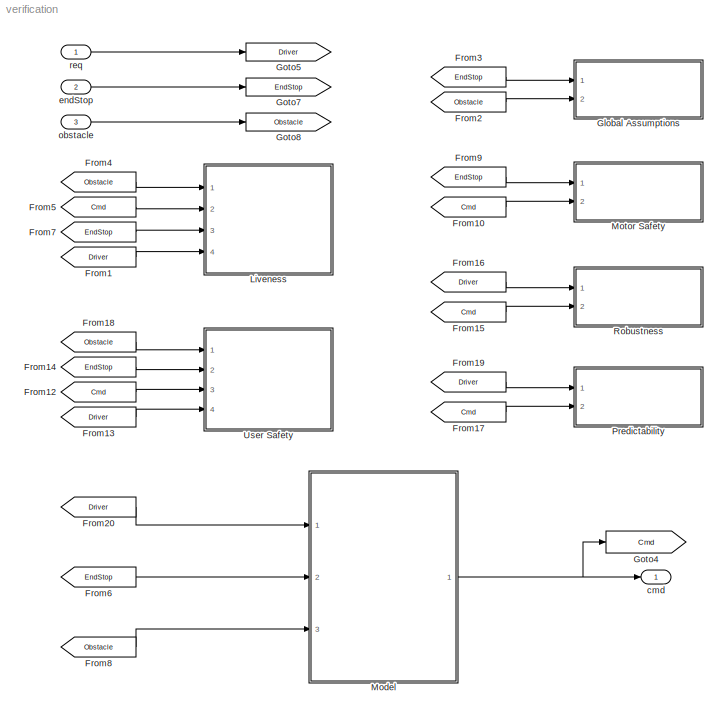
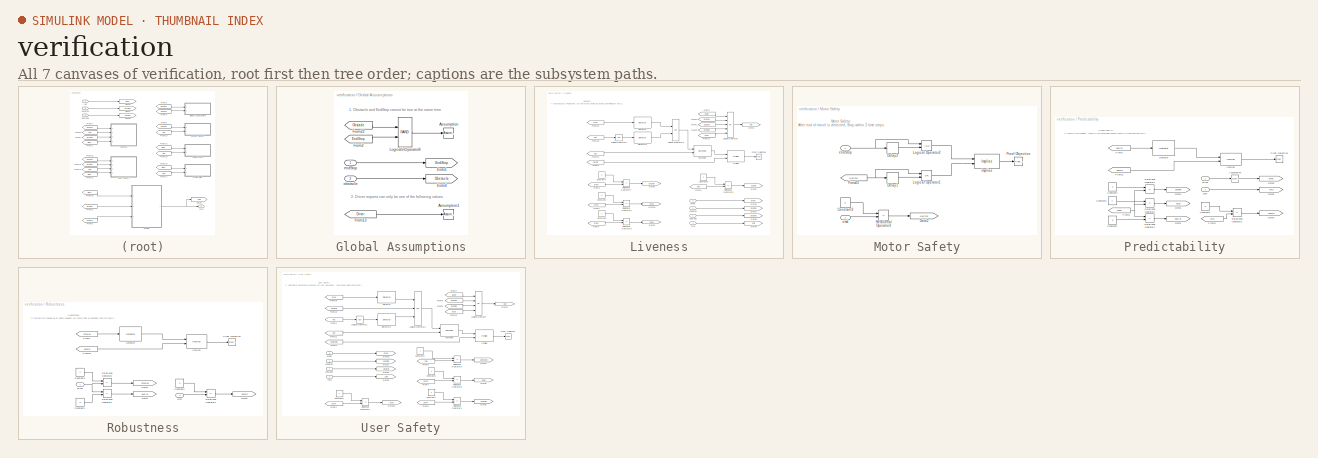
[diagram: thumbnail index - all 7 canvases of the model, root first then tree order]
MODEL verification
KIND model
BLOCK [From] From1
  GotoTag = Driver
  SID = 62
BLOCK [From] From10
  GotoTag = Cmd
  SID = 70
BLOCK [From] From12
  GotoTag = Cmd
  SID = 72
BLOCK [From] From13
  GotoTag = Driver
  SID = 73
BLOCK [From] From14
  GotoTag = EndStop
  SID = 74
BLOCK [From] From15
  GotoTag = Cmd
  SID = 78
BLOCK [From] From16
  GotoTag = Driver
  SID = 79
BLOCK [From] From17
  GotoTag = Cmd
  SID = 84
BLOCK [From] From18
  GotoTag = Obstacle
  SID = 81
BLOCK [From] From19
  GotoTag = Driver
  SID = 85
BLOCK [From] From2
  GotoTag = Obstacle
  SID = 63
BLOCK [From] From20
  GotoTag = Driver
  SID = 23
BLOCK [From] From3
  GotoTag = EndStop
  SID = 65
BLOCK [From] From4
  GotoTag = Obstacle
  SID = 66
BLOCK [From] From5
  GotoTag = Cmd
  SID = 67
BLOCK [From] From6
  GotoTag = EndStop
  SID = 25
BLOCK [From] From7
  GotoTag = EndStop
  SID = 68
BLOCK [From] From8
  GotoTag = Obstacle
  SID = 26
BLOCK [From] From9
  GotoTag = EndStop
  SID = 69
BLOCK [SubSystem] Global Assumptions
  CopyFcn = sldvsubsys('copy');
  DisableCoverage = on
  LoadFcn = sldvsubsys('check')
  OpenFcn = open_system(gcb,'force');
  Ports = [2]
  PreSaveFcn = set_param(gcb,'SimViewingDevice','on');\nsldvsubsys('check');
  RequestExecContextInheritance = off
  SID = 27
  SimViewingDevice = on
  Tag = VerificationSubsystem
  TreatAsAtomicUnit = on
BLOCK [Reference] Global Assumptions/Assumption  REF=sldvlib/Objectives and Constraints/Assumption
  AttributesFormatString = %<intervals>
  Ports = [1]
  SID = 27:224
  SourceBlock = sldvlib/Objectives and Constraints/Assumption
  SourceType = Design Verifier Assumption
  customAVTBlockType = Assumption
  dispValues = on
  enabled = on
  initial = off
  intervals = true
  outEnabled = off
BLOCK [Reference] Global Assumptions/Assumption1  REF=sldvlib/Objectives and Constraints/Assumption
  AttributesFormatString = %<intervals>
  Ports = [1]
  SID = 27:378
  SourceBlock = sldvlib/Objectives and Constraints/Assumption
  SourceType = Design Verifier Assumption
  customAVTBlockType = Assumption
  dispValues = on
  enabled = on
  initial = off
  intervals = {0,1,2,3,4}
  outEnabled = off
BLOCK [From] Global Assumptions/From13
  GotoTag = Driver
  SID = 27:379
BLOCK [From] Global Assumptions/From2
  GotoTag = EndStop
  SID = 27:372
  TagVisibility = global
BLOCK [From] Global Assumptions/From22
  GotoTag = Obstacle
  SID = 27:219
  TagVisibility = global
BLOCK [Goto] Global Assumptions/Goto1
  GotoTag = EndStop
  SID = 27:377
  TagVisibility = global
BLOCK [Goto] Global Assumptions/Goto4
  GotoTag = Obstacle
  SID = 27:376
  TagVisibility = global
BLOCK [Logic] Global Assumptions/Logical\nOperator8
  AllPortsSameDT = off
  Operator = NAND
  OutDataTypeStr = boolean
  Ports = [2, 1]
  SID = 27:220
BLOCK [Inport] Global Assumptions/endStop
  IconDisplay = Port number
  SID = 27:373
BLOCK [Inport] Global Assumptions/obstacle
  IconDisplay = Port number
  Port = 2
  SID = 27:374
BLOCK [Goto] Goto4
  GotoTag = Cmd
  SID = 28
BLOCK [Goto] Goto5
  GotoTag = Driver
  SID = 29
BLOCK [Goto] Goto7
  GotoTag = EndStop
  SID = 31
BLOCK [Goto] Goto8
  GotoTag = Obstacle
  SID = 32
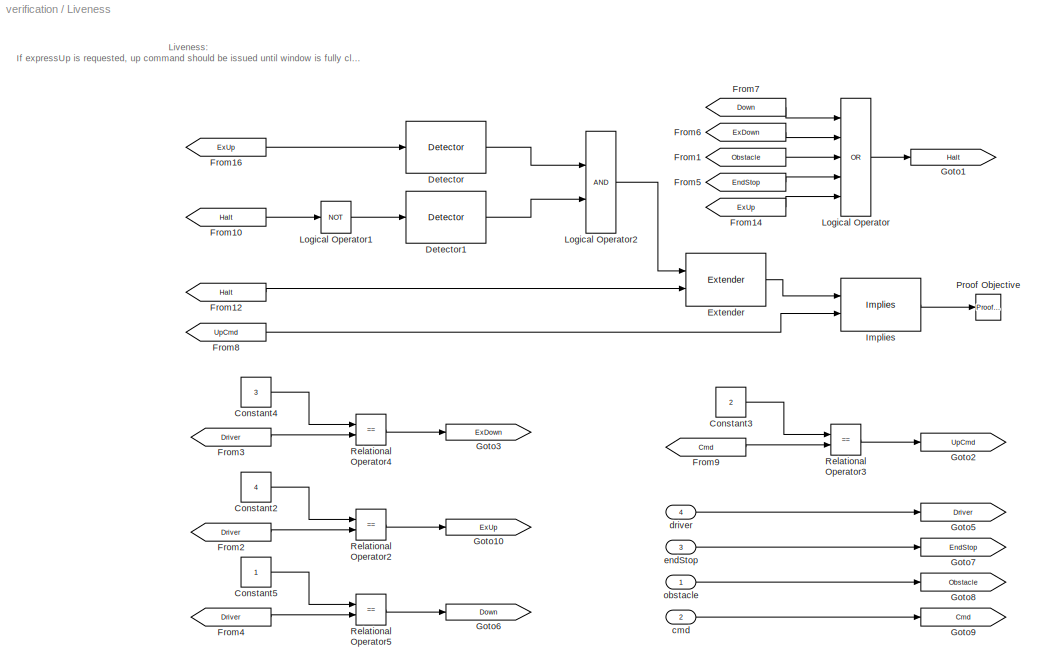
BLOCK [SubSystem] Liveness
  CopyFcn = sldvsubsys('copy');
  DisableCoverage = on
  LoadFcn = sldvsubsys('check')
  OpenFcn = open_system(gcb,'force');
  Ports = [4]
  PreSaveFcn = set_param(gcb,'SimViewingDevice','on');\nsldvsubsys('check');
  RequestExecContextInheritance = off
  SID = 43
  SimViewingDevice = on
  Tag = VerificationSubsystem
  TreatAsAtomicUnit = on
BLOCK [Constant] Liveness/Constant2
  SID = 43:3
  SampleTime = Inf
  Value = 4
BLOCK [Constant] Liveness/Constant3
  SID = 43:50
  SampleTime = Inf
  Value = 2
BLOCK [Constant] Liveness/Constant4
  SID = 43:87
  SampleTime = Inf
  Value = 3
BLOCK [Constant] Liveness/Constant5
  SID = 43:91
  SampleTime = Inf
BLOCK [Reference] Liveness/Detector  REF=sldvlib/Temporal Operators/Detector
  Ports = [1, 1]
  SID = 43:62
  SourceBlock = sldvlib/Temporal Operators/Detector
  SourceType = Detector
  delay = 0
  in_hold = 3
  out_hold = 2
  reset = off
  typ = Delayed Fixed Duration
BLOCK [Reference] Liveness/Detector1  REF=sldvlib/Temporal Operators/Detector
  Ports = [1, 1]
  SID = 43:75
  SourceBlock = sldvlib/Temporal Operators/Detector
  SourceType = Detector
  delay = 0
  in_hold = 4
  out_hold = 1
  reset = off
  typ = Delayed Fixed Duration
BLOCK [Reference] Liveness/Extender  REF=sldvlib/Temporal Operators/Extender
  Ports = [2, 1]
  SID = 43:39
  SourceBlock = sldvlib/Temporal Operators/Extender
  SourceType = Extender
  ext_type = Infinite
  out_hold = 3
  reset = on
BLOCK [From] Liveness/From1
  GotoTag = Obstacle
  SID = 43:95
BLOCK [From] Liveness/From10
  GotoTag = Halt
  SID = 43:107
BLOCK [From] Liveness/From12
  GotoTag = Halt
  SID = 43:109
BLOCK [From] Liveness/From14
  GotoTag = ExUp
  SID = 43:115
BLOCK [From] Liveness/From16
  GotoTag = ExUp
  SID = 43:5
BLOCK [From] Liveness/From2
  GotoTag = Driver
  SID = 43:86
BLOCK [From] Liveness/From3
  GotoTag = Driver
  SID = 43:88
BLOCK [From] Liveness/From4
  GotoTag = Driver
  SID = 43:92
BLOCK [From] Liveness/From5
  GotoTag = EndStop
  SID = 43:96
BLOCK [From] Liveness/From6
  GotoTag = ExDown
  SID = 43:97
BLOCK [From] Liveness/From7
  GotoTag = Down
  SID = 43:98
BLOCK [From] Liveness/From8
  GotoTag = UpCmd
  SID = 43:111
BLOCK [From] Liveness/From9
  GotoTag = Cmd
  SID = 43:105
BLOCK [Goto] Liveness/Goto1
  GotoTag = Halt
  SID = 43:77
BLOCK [Goto] Liveness/Goto10
  GotoTag = ExUp
  SID = 43:8
BLOCK [Goto] Liveness/Goto2
  GotoTag = UpCmd
  SID = 43:52
BLOCK [Goto] Liveness/Goto3
  GotoTag = ExDown
  SID = 43:89
BLOCK [Goto] Liveness/Goto5
  GotoTag = Driver
  SID = 43:83
BLOCK [Goto] Liveness/Goto6
  GotoTag = Down
  SID = 43:93
BLOCK [Goto] Liveness/Goto7
  GotoTag = EndStop
  SID = 43:84
BLOCK [Goto] Liveness/Goto8
  GotoTag = Obstacle
  SID = 43:85
BLOCK [Goto] Liveness/Goto9
  GotoTag = Cmd
  SID = 43:103
BLOCK [Reference] Liveness/Implies  REF=sldvlib/Verification Utilities/Implies
  Ports = [2, 1]
  SID = 43:9
  SourceBlock = sldvlib/Verification Utilities/Implies
  SourceType = Design Verifier Implies
BLOCK [Logic] Liveness/Logical Operator
  AllPortsSameDT = off
  Inputs = 5
  Operator = OR
  OutDataTypeStr = boolean
  Ports = [5, 1]
  SID = 43:74
BLOCK [Logic] Liveness/Logical Operator1
  AllPortsSameDT = off
  Operator = NOT
  OutDataTypeStr = boolean
  Ports = [1, 1]
  SID = 43:76
BLOCK [Logic] Liveness/Logical Operator2
  AllPortsSameDT = off
  OutDataTypeStr = boolean
  Ports = [2, 1]
  SID = 43:106
BLOCK [Reference] Liveness/Proof Objective  REF=sldvlib/Objectives and Constraints/Proof Objective
  AttributesFormatString = %<intervals>
  Ports = [1]
  SID = 43:10
  SourceBlock = sldvlib/Objectives and Constraints/Proof Objective
  SourceType = Design Verifier Proof Objective
  customAVTBlockType = Proof Objective
  dispValues = on
  enableStopSim = off
  enabled = on
  intervals = true
  outEnabled = off
BLOCK [RelationalOperator] Liveness/Relational Operator2
  InputSameDT = off
  Operator = ==
  OutDataTypeStr = boolean
  Ports = [2, 1]
  SID = 43:11
BLOCK [RelationalOperator] Liveness/Relational Operator3
  InputSameDT = off
  Operator = ==
  OutDataTypeStr = boolean
  Ports = [2, 1]
  SID = 43:53
BLOCK [RelationalOperator] Liveness/Relational Operator4
  InputSameDT = off
  Operator = ==
  OutDataTypeStr = boolean
  Ports = [2, 1]
  SID = 43:90
BLOCK [RelationalOperator] Liveness/Relational Operator5
  InputSameDT = off
  Operator = ==
  OutDataTypeStr = boolean
  Ports = [2, 1]
  SID = 43:94
BLOCK [Inport] Liveness/cmd
  IconDisplay = Port number
  Port = 2
  SID = 43:49
BLOCK [Inport] Liveness/driver
  IconDisplay = Port number
  OutDataTypeStr = double
  Port = 4
  SID = 43:80
BLOCK [Inport] Liveness/endStop
  IconDisplay = Port number
  OutDataTypeStr = boolean
  Port = 3
  SID = 43:81
BLOCK [Inport] Liveness/obstacle
  IconDisplay = Port number
  OutDataTypeStr = boolean
  SID = 43:82
BLOCK [ModelReference] Model
  CopyOfModelName = power_window_controller
  DefaultDataLogging = on
  ModelNameDialog = power_window_controller
  ModelReferenceVersion = 1.45
  Ports = [3, 1]
  SID = 33
BLOCK [SubSystem] Motor Safety
  CopyFcn = sldvsubsys('copy');
  DisableCoverage = on
  LoadFcn = sldvsubsys('check')
  OpenFcn = open_system(gcb,'force');
  Ports = [2]
  PreSaveFcn = set_param(gcb,'SimViewingDevice','on');\nsldvsubsys('check');
  RequestExecContextInheritance = off
  SID = 36
  SimViewingDevice = on
  Tag = VerificationSubsystem
  TreatAsAtomicUnit = on
BLOCK [Constant] Motor Safety/Constant3
  SID = 36:26
  SampleTime = Inf
  Value = 0
BLOCK [Delay] Motor Safety/Delay1
  DelayLength = 1
  InitialCondition = 0
  InputPortMap = u0
  Ports = [1, 1]
  SID = 36:20
BLOCK [Delay] Motor Safety/Delay2
  DelayLength = 1
  InitialCondition = 0
  InputPortMap = u0
  Ports = [1, 1]
  SID = 36:35
BLOCK [From] Motor Safety/From22
  GotoTag = NoCmd
  SID = 36:7
BLOCK [Goto] Motor Safety/Goto2
  GotoTag = NoCmd
  SID = 36:27
BLOCK [Reference] Motor Safety/Implies  REF=sldvlib/Verification Utilities/Implies
  Ports = [2, 1]
  SID = 36:9
  SourceBlock = sldvlib/Verification Utilities/Implies
  SourceType = Design Verifier Implies
BLOCK [Logic] Motor Safety/Logical Operator1
  AllPortsSameDT = off
  Operator = OR
  OutDataTypeStr = boolean
  Ports = [2, 1]
  SID = 36:21
BLOCK [Logic] Motor Safety/Logical Operator2
  AllPortsSameDT = off
  OutDataTypeStr = boolean
  Ports = [2, 1]
  SID = 36:36
BLOCK [Reference] Motor Safety/Proof Objective  REF=sldvlib/Objectives and Constraints/Proof Objective
  AttributesFormatString = %<intervals>
  Ports = [1]
  SID = 36:10
  SourceBlock = sldvlib/Objectives and Constraints/Proof Objective
  SourceType = Design Verifier Proof Objective
  customAVTBlockType = Proof Objective
  dispValues = on
  enableStopSim = off
  enabled = on
  intervals = true
  outEnabled = off
BLOCK [RelationalOperator] Motor Safety/Relational Operator3
  InputSameDT = off
  Operator = ==
  OutDataTypeStr = boolean
  Ports = [2, 1]
  SID = 36:28
BLOCK [Inport] Motor Safety/cmd
  IconDisplay = Port number
  Port = 2
  SID = 36:25
BLOCK [Inport] Motor Safety/endStop
  IconDisplay = Port number
  SID = 36:24
BLOCK [SubSystem] Predictability
  CopyFcn = sldvsubsys('copy');
  DisableCoverage = on
  LoadFcn = sldvsubsys('check')
  OpenFcn = open_system(gcb,'force');
  Ports = [2]
  PreSaveFcn = set_param(gcb,'SimViewingDevice','on');\nsldvsubsys('check');
  RequestExecContextInheritance = off
  SID = 86
  SimViewingDevice = on
  Tag = VerificationSubsystem
  TreatAsAtomicUnit = on
BLOCK [Reference] Predictability/Assumption  REF=sldvlib/Objectives and Constraints/Assumption
  AttributesFormatString = %<intervals>
  Ports = [1, 1]
  SID = 86:100
  SourceBlock = sldvlib/Objectives and Constraints/Assumption
  SourceType = Design Verifier Assumption
  customAVTBlockType = Assumption
  dispValues = on
  enabled = on
  initial = off
  intervals = {0,1,2}
  outEnabled = on
BLOCK [Constant] Predictability/Constant1
  SID = 86:53
  SampleTime = Inf
  Value = 0
BLOCK [Constant] Predictability/Constant2
  SID = 86:67
  SampleTime = Inf
  Value = 0
BLOCK [Constant] Predictability/Constant3
  SID = 86:42
  SampleTime = Inf
  Value = 4
BLOCK [Constant] Predictability/Constant4
  SID = 86:85
  SampleTime = Inf
  Value = 3
BLOCK [Reference] Predictability/Detector  REF=sldvlib/Temporal Operators/Detector
  Ports = [1, 1]
  SID = 86:56
  SourceBlock = sldvlib/Temporal Operators/Detector
  SourceType = Detector
  delay = 0
  in_hold = 3
  out_hold = 5
  reset = off
  typ = Synchronized
BLOCK [From] Predictability/From1
  GotoTag = Neutral
  SID = 86:82
BLOCK [From] Predictability/From2
  GotoTag = Driver
  SID = 86:80
BLOCK [From] Predictability/From22
  GotoTag = NoCmd
  SID = 86:45
BLOCK [From] Predictability/From3
  GotoTag = Cmd
  SID = 86:81
BLOCK [Goto] Predictability/Goto1
  GotoTag = Neutral
  SID = 86:54
BLOCK [Goto] Predictability/Goto2
  GotoTag = ExUp
  SID = 86:46
BLOCK [Goto] Predictability/Goto3
  GotoTag = NoCmd
  SID = 86:68
BLOCK [Goto] Predictability/Goto4
  GotoTag = ExDown
  SID = 86:86
BLOCK [Goto] Predictability/Goto5
  GotoTag = Driver
  SID = 86:77
BLOCK [Goto] Predictability/Goto9
  GotoTag = Cmd
  SID = 86:79
BLOCK [Reference] Predictability/Implies  REF=sldvlib/Verification Utilities/Implies
  Ports = [2, 1]
  SID = 86:47
  SourceBlock = sldvlib/Verification Utilities/Implies
  SourceType = Design Verifier Implies
BLOCK [Reference] Predictability/Proof Objective  REF=sldvlib/Objectives and Constraints/Proof Objective
  AttributesFormatString = %<intervals>
  Ports = [1]
  SID = 86:50
  SourceBlock = sldvlib/Objectives and Constraints/Proof Objective
  SourceType = Design Verifier Proof Objective
  customAVTBlockType = Proof Objective
  dispValues = on
  enableStopSim = off
  enabled = on
  intervals = true
  outEnabled = off
BLOCK [RelationalOperator] Predictability/Relational Operator1
  InputSameDT = off
  Operator = ==
  OutDataTypeStr = boolean
  Ports = [2, 1]
  SID = 86:52
BLOCK [RelationalOperator] Predictability/Relational Operator2
  InputSameDT = off
  Operator = ==
  OutDataTypeStr = boolean
  Ports = [2, 1]
  SID = 86:69
BLOCK [RelationalOperator] Predictability/Relational Operator3
  InputSameDT = off
  Operator = ==
  OutDataTypeStr = boolean
  Ports = [2, 1]
  SID = 86:51
BLOCK [RelationalOperator] Predictability/Relational Operator4
  InputSameDT = off
  Operator = ==
  OutDataTypeStr = boolean
  Ports = [2, 1]
  SID = 86:87
BLOCK [Inport] Predictability/cmd
  IconDisplay = Port number
  Port = 2
  SID = 86:78
BLOCK [Inport] Predictability/driver
  IconDisplay = Port number
  OutDataTypeStr = double
  SID = 86:76
BLOCK [SubSystem] Robustness
  CopyFcn = sldvsubsys('copy');
  DisableCoverage = on
  LoadFcn = sldvsubsys('check')
  OpenFcn = open_system(gcb,'force');
  Ports = [2]
  PreSaveFcn = set_param(gcb,'SimViewingDevice','on');\nsldvsubsys('check');
  RequestExecContextInheritance = off
  SID = 59
  SimViewingDevice = on
  Tag = VerificationSubsystem
  TreatAsAtomicUnit = on
BLOCK [Constant] Robustness/Constant1
  SID = 59:53
  SampleTime = Inf
  Value = 0
BLOCK [Constant] Robustness/Constant2
  SID = 59:67
  SampleTime = Inf
  Value = 0
BLOCK [Constant] Robustness/Constant3
  SID = 59:42
  SampleTime = Inf
  Value = 2
BLOCK [Reference] Robustness/Detector  REF=sldvlib/Temporal Operators/Detector
  Ports = [1, 1]
  SID = 59:56
  SourceBlock = sldvlib/Temporal Operators/Detector
  SourceType = Detector
  delay = 0
  in_hold = 100
  out_hold = 5
  reset = off
  typ = Delayed Fixed Duration
BLOCK [From] Robustness/From1
  GotoTag = DriverUp
  SID = 59:64
BLOCK [From] Robustness/From22
  GotoTag = NoCmd
  SID = 59:45
BLOCK [Goto] Robustness/Goto1
  GotoTag = Neutral
  SID = 59:54
BLOCK [Goto] Robustness/Goto2
  GotoTag = DriverUp
  SID = 59:46
BLOCK [Goto] Robustness/Goto3
  GotoTag = NoCmd
  SID = 59:68
BLOCK [Reference] Robustness/Implies  REF=sldvlib/Verification Utilities/Implies
  Ports = [2, 1]
  SID = 59:47
  SourceBlock = sldvlib/Verification Utilities/Implies
  SourceType = Design Verifier Implies
BLOCK [Reference] Robustness/Proof Objective  REF=sldvlib/Objectives and Constraints/Proof Objective
  AttributesFormatString = %<intervals>
  Ports = [1]
  SID = 59:50
  SourceBlock = sldvlib/Objectives and Constraints/Proof Objective
  SourceType = Design Verifier Proof Objective
  customAVTBlockType = Proof Objective
  dispValues = on
  enableStopSim = off
  enabled = on
  intervals = true
  outEnabled = off
BLOCK [RelationalOperator] Robustness/Relational Operator1
  InputSameDT = off
  Operator = ==
  OutDataTypeStr = boolean
  Ports = [2, 1]
  SID = 59:52
BLOCK [RelationalOperator] Robustness/Relational Operator2
  InputSameDT = off
  Operator = ==
  OutDataTypeStr = boolean
  Ports = [2, 1]
  SID = 59:69
BLOCK [RelationalOperator] Robustness/Relational Operator3
  InputSameDT = off
  Operator = ==
  OutDataTypeStr = boolean
  Ports = [2, 1]
  SID = 59:51
BLOCK [Inport] Robustness/cmd
  IconDisplay = Port number
  Port = 2
  SID = 59:66
BLOCK [Inport] Robustness/driver
  IconDisplay = Port number
  SID = 59:39
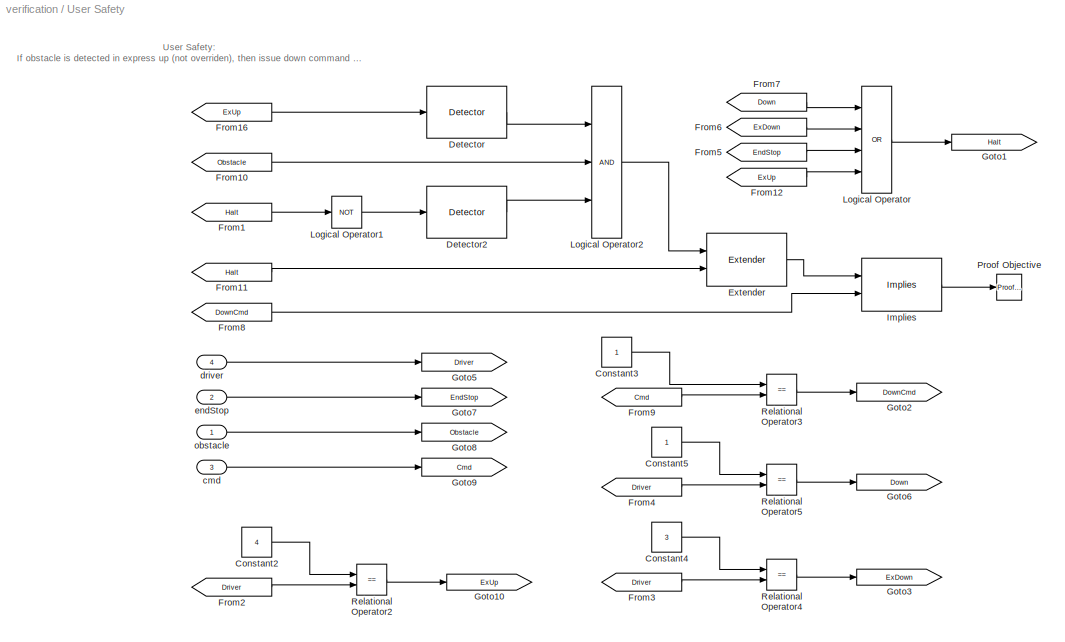
BLOCK [SubSystem] User Safety
  CopyFcn = sldvsubsys('copy');
  DisableCoverage = on
  LoadFcn = sldvsubsys('check')
  OpenFcn = open_system(gcb,'force');
  Ports = [4]
  PreSaveFcn = set_param(gcb,'SimViewingDevice','on');\nsldvsubsys('check');
  RequestExecContextInheritance = off
  SID = 46
  SimViewingDevice = on
  Tag = VerificationSubsystem
  TreatAsAtomicUnit = on
BLOCK [Constant] User Safety/Constant2
  SID = 46:40
  SampleTime = Inf
  Value = 4
BLOCK [Constant] User Safety/Constant3
  SID = 46:41
  SampleTime = Inf
BLOCK [Constant] User Safety/Constant4
  SID = 46:42
  SampleTime = Inf
  Value = 3
BLOCK [Constant] User Safety/Constant5
  SID = 46:43
  SampleTime = Inf
BLOCK [Reference] User Safety/Detector  REF=sldvlib/Temporal Operators/Detector
  Ports = [1, 1]
  SID = 46:44
  SourceBlock = sldvlib/Temporal Operators/Detector
  SourceType = Detector
  delay = 0
  in_hold = 3
  out_hold = 2
  reset = off
  typ = Delayed Fixed Duration
BLOCK [Reference] User Safety/Detector2  REF=sldvlib/Temporal Operators/Detector
  Ports = [1, 1]
  SID = 46:80
  SourceBlock = sldvlib/Temporal Operators/Detector
  SourceType = Detector
  delay = 0
  in_hold = 4
  out_hold = 1
  reset = off
  typ = Delayed Fixed Duration
BLOCK [Reference] User Safety/Extender  REF=sldvlib/Temporal Operators/Extender
  Ports = [2, 1]
  SID = 46:46
  SourceBlock = sldvlib/Temporal Operators/Extender
  SourceType = Extender
  ext_type = Infinite
  out_hold = 3
  reset = on
BLOCK [From] User Safety/From1
  GotoTag = Halt
  SID = 46:86
BLOCK [From] User Safety/From10
  GotoTag = Obstacle
  SID = 46:48
BLOCK [From] User Safety/From11
  GotoTag = Halt
  SID = 46:49
BLOCK [From] User Safety/From12
  GotoTag = ExUp
  SID = 46:50
BLOCK [From] User Safety/From16
  GotoTag = ExUp
  SID = 46:52
BLOCK [From] User Safety/From2
  GotoTag = Driver
  SID = 46:53
BLOCK [From] User Safety/From3
  GotoTag = Driver
  SID = 46:54
BLOCK [From] User Safety/From4
  GotoTag = Driver
  SID = 46:55
BLOCK [From] User Safety/From5
  GotoTag = EndStop
  SID = 46:56
BLOCK [From] User Safety/From6
  GotoTag = ExDown
  SID = 46:57
BLOCK [From] User Safety/From7
  GotoTag = Down
  SID = 46:58
BLOCK [From] User Safety/From8
  GotoTag = DownCmd
  SID = 46:59
BLOCK [From] User Safety/From9
  GotoTag = Cmd
  SID = 46:60
BLOCK [Goto] User Safety/Goto1
  GotoTag = Halt
  SID = 46:61
BLOCK [Goto] User Safety/Goto10
  GotoTag = ExUp
  SID = 46:62
BLOCK [Goto] User Safety/Goto2
  GotoTag = DownCmd
  SID = 46:63
BLOCK [Goto] User Safety/Goto3
  GotoTag = ExDown
  SID = 46:64
BLOCK [Goto] User Safety/Goto5
  GotoTag = Driver
  SID = 46:65
BLOCK [Goto] User Safety/Goto6
  GotoTag = Down
  SID = 46:66
BLOCK [Goto] User Safety/Goto7
  GotoTag = EndStop
  SID = 46:67
BLOCK [Goto] User Safety/Goto8
  GotoTag = Obstacle
  SID = 46:68
BLOCK [Goto] User Safety/Goto9
  GotoTag = Cmd
  SID = 46:69
BLOCK [Reference] User Safety/Implies  REF=sldvlib/Verification Utilities/Implies
  Ports = [2, 1]
  SID = 46:70
  SourceBlock = sldvlib/Verification Utilities/Implies
  SourceType = Design Verifier Implies
BLOCK [Logic] User Safety/Logical Operator
  AllPortsSameDT = off
  Inputs = 4
  Operator = OR
  OutDataTypeStr = boolean
  Ports = [4, 1]
  SID = 46:71
BLOCK [Logic] User Safety/Logical Operator1
  AllPortsSameDT = off
  Operator = NOT
  OutDataTypeStr = boolean
  Ports = [1, 1]
  SID = 46:82
BLOCK [Logic] User Safety/Logical Operator2
  AllPortsSameDT = off
  Inputs = 3
  OutDataTypeStr = boolean
  Ports = [3, 1]
  SID = 46:73
BLOCK [Reference] User Safety/Proof Objective  REF=sldvlib/Objectives and Constraints/Proof Objective
  AttributesFormatString = %<intervals>
  Ports = [1]
  SID = 46:75
  SourceBlock = sldvlib/Objectives and Constraints/Proof Objective
  SourceType = Design Verifier Proof Objective
  customAVTBlockType = Proof Objective
  dispValues = on
  enableStopSim = off
  enabled = on
  intervals = true
  outEnabled = off
BLOCK [RelationalOperator] User Safety/Relational Operator2
  InputSameDT = off
  Operator = ==
  OutDataTypeStr = boolean
  Ports = [2, 1]
  SID = 46:76
BLOCK [RelationalOperator] User Safety/Relational Operator3
  InputSameDT = off
  Operator = ==
  OutDataTypeStr = boolean
  Ports = [2, 1]
  SID = 46:77
BLOCK [RelationalOperator] User Safety/Relational Operator4
  InputSameDT = off
  Operator = ==
  OutDataTypeStr = boolean
  Ports = [2, 1]
  SID = 46:78
BLOCK [RelationalOperator] User Safety/Relational Operator5
  InputSameDT = off
  Operator = ==
  OutDataTypeStr = boolean
  Ports = [2, 1]
  SID = 46:79
BLOCK [Inport] User Safety/cmd
  IconDisplay = Port number
  Port = 3
  SID = 46:36
BLOCK [Inport] User Safety/driver
  IconDisplay = Port number
  OutDataTypeStr = double
  Port = 4
  SID = 46:38
BLOCK [Inport] User Safety/endStop
  IconDisplay = Port number
  OutDataTypeStr = boolean
  Port = 2
  SID = 46:37
BLOCK [Inport] User Safety/obstacle
  IconDisplay = Port number
  OutDataTypeStr = boolean
  SID = 46:35
BLOCK [Outport] cmd
  IconDisplay = Port number
  SID = 35
BLOCK [Inport] endStop
  IconDisplay = Port number
  OutDataTypeStr = boolean
  Port = 2
  SID = 12
BLOCK [Inport] obstacle
  IconDisplay = Port number
  OutDataTypeStr = boolean
  Port = 3
  SID = 13
BLOCK [Inport] req
  IconDisplay = Port number
  OutDataTypeStr = double
  SID = 11
ANNOTATION Global Assumptions: 1. Obstacle and EndStop cannot be true at the same time
ANNOTATION Global Assumptions: 2. Driver request can only be one of the following values
ANNOTATION Liveness: Liveness:\nIf expressUp is requested, up command should be issued until window is fully closed (unless there is an obstacle and user is not overriding)
ANNOTATION Motor Safety: Motor Safety:\nAfter end of travel is detected, Stop within 2 time steps
ANNOTATION Predictability: Predictability:\nIf there is no request, there is no command unless there is a delayed action e.g. express
ANNOTATION Robustness: Robustness:\nIf the switch issues up or down request for more than 10 seconds (switch fault), stop the motor until the switch request is neutral again
ANNOTATION User Safety: User Safety:\nIf obstacle is detected in express up (not overriden), then issue down command to Motor until endStop is reached
LINE From10:1 -> Motor Safety:2
LINE From12:1 -> User Safety:3
LINE From13:1 -> User Safety:4
LINE From14:1 -> User Safety:2
LINE From15:1 -> Robustness:2
LINE From16:1 -> Robustness:1
LINE From17:1 -> Predictability:2
LINE From18:1 -> User Safety:1
LINE From19:1 -> Predictability:1
LINE From1:1 -> Liveness:4
LINE From20:1 -> Model:1
LINE From2:1 -> Global Assumptions:2
LINE From3:1 -> Global Assumptions:1
LINE From4:1 -> Liveness:1
LINE From5:1 -> Liveness:2
LINE From6:1 -> Model:2
LINE From7:1 -> Liveness:3
LINE From8:1 -> Model:3
LINE From9:1 -> Motor Safety:1
LINE Global Assumptions/From13:1 -> Global Assumptions/Assumption1:1
LINE Global Assumptions/From22:1 -> Global Assumptions/Logical\nOperator8:1
LINE Global Assumptions/From2:1 -> Global Assumptions/Logical\nOperator8:2
LINE Global Assumptions/Logical\nOperator8:1 -> Global Assumptions/Assumption:1
LINE Global Assumptions/endStop:1 -> Global Assumptions/Goto1:1
LINE Global Assumptions/obstacle:1 -> Global Assumptions/Goto4:1
LINE Liveness/Constant2:1 -> Liveness/Relational Operator2:1
LINE Liveness/Constant3:1 -> Liveness/Relational Operator3:1
LINE Liveness/Constant4:1 -> Liveness/Relational Operator4:1
LINE Liveness/Constant5:1 -> Liveness/Relational Operator5:1
LINE Liveness/Detector1:1 -> Liveness/Logical Operator2:2
LINE Liveness/Detector:1 -> Liveness/Logical Operator2:1
LINE Liveness/Extender:1 -> Liveness/Implies:1
LINE Liveness/From10:1 -> Liveness/Logical Operator1:1
LINE Liveness/From12:1 -> Liveness/Extender:2
LINE Liveness/From14:1 -> Liveness/Logical Operator:5
LINE Liveness/From16:1 -> Liveness/Detector:1
LINE Liveness/From1:1 -> Liveness/Logical Operator:3
LINE Liveness/From2:1 -> Liveness/Relational Operator2:2
LINE Liveness/From3:1 -> Liveness/Relational Operator4:2
LINE Liveness/From4:1 -> Liveness/Relational Operator5:2
LINE Liveness/From5:1 -> Liveness/Logical Operator:4
LINE Liveness/From6:1 -> Liveness/Logical Operator:2
LINE Liveness/From7:1 -> Liveness/Logical Operator:1
LINE Liveness/From8:1 -> Liveness/Implies:2
LINE Liveness/From9:1 -> Liveness/Relational Operator3:2
LINE Liveness/Implies:1 -> Liveness/Proof Objective:1
LINE Liveness/Logical Operator1:1 -> Liveness/Detector1:1
LINE Liveness/Logical Operator2:1 -> Liveness/Extender:1
LINE Liveness/Logical Operator:1 -> Liveness/Goto1:1
LINE Liveness/Relational Operator2:1 -> Liveness/Goto10:1
LINE Liveness/Relational Operator3:1 -> Liveness/Goto2:1
LINE Liveness/Relational Operator4:1 -> Liveness/Goto3:1
LINE Liveness/Relational Operator5:1 -> Liveness/Goto6:1
LINE Liveness/cmd:1 -> Liveness/Goto9:1
LINE Liveness/driver:1 -> Liveness/Goto5:1
LINE Liveness/endStop:1 -> Liveness/Goto7:1
LINE Liveness/obstacle:1 -> Liveness/Goto8:1
NET Model:1 -> Goto4:1, cmd:1
LINE Motor Safety/Constant3:1 -> Motor Safety/Relational Operator3:1
LINE Motor Safety/Delay1:1 -> Motor Safety/Logical Operator1:2
LINE Motor Safety/Delay2:1 -> Motor Safety/Logical Operator2:2
NET Motor Safety/From22:1 -> Motor Safety/Delay1:1, Motor Safety/Logical Operator1:1
LINE Motor Safety/Implies:1 -> Motor Safety/Proof Objective:1
LINE Motor Safety/Logical Operator1:1 -> Motor Safety/Implies:2
LINE Motor Safety/Logical Operator2:1 -> Motor Safety/Implies:1
LINE Motor Safety/Relational Operator3:1 -> Motor Safety/Goto2:1
LINE Motor Safety/cmd:1 -> Motor Safety/Relational Operator3:2
NET Motor Safety/endStop:1 -> Motor Safety/Delay2:1, Motor Safety/Logical Operator2:1
LINE Predictability/Assumption:1 -> Predictability/Goto5:1
LINE Predictability/Constant1:1 -> Predictability/Relational Operator1:2
LINE Predictability/Constant2:1 -> Predictability/Relational Operator2:1
LINE Predictability/Constant3:1 -> Predictability/Relational Operator3:1
LINE Predictability/Constant4:1 -> Predictability/Relational Operator4:1
LINE Predictability/Detector:1 -> Predictability/Implies:1
LINE Predictability/From1:1 -> Predictability/Detector:1
LINE Predictability/From22:1 -> Predictability/Implies:2
NET Predictability/From2:1 -> Predictability/Relational Operator1:1, Predictability/Relational Operator3:2, Predictability/Relational Operator4:2
LINE Predictability/From3:1 -> Predictability/Relational Operator2:2
LINE Predictability/Implies:1 -> Predictability/Proof Objective:1
LINE Predictability/Relational Operator1:1 -> Predictability/Goto1:1
LINE Predictability/Relational Operator2:1 -> Predictability/Goto3:1
LINE Predictability/Relational Operator3:1 -> Predictability/Goto2:1
LINE Predictability/Relational Operator4:1 -> Predictability/Goto4:1
LINE Predictability/cmd:1 -> Predictability/Goto9:1
LINE Predictability/driver:1 -> Predictability/Assumption:1
LINE Robustness/Constant1:1 -> Robustness/Relational Operator1:2
LINE Robustness/Constant2:1 -> Robustness/Relational Operator2:1
LINE Robustness/Constant3:1 -> Robustness/Relational Operator3:1
LINE Robustness/Detector:1 -> Robustness/Implies:1
LINE Robustness/From1:1 -> Robustness/Detector:1
LINE Robustness/From22:1 -> Robustness/Implies:2
LINE Robustness/Implies:1 -> Robustness/Proof Objective:1
LINE Robustness/Relational Operator1:1 -> Robustness/Goto1:1
LINE Robustness/Relational Operator2:1 -> Robustness/Goto3:1
LINE Robustness/Relational Operator3:1 -> Robustness/Goto2:1
LINE Robustness/cmd:1 -> Robustness/Relational Operator2:2
NET Robustness/driver:1 -> Robustness/Relational Operator1:1, Robustness/Relational Operator3:2
LINE User Safety/Constant2:1 -> User Safety/Relational Operator2:1
LINE User Safety/Constant3:1 -> User Safety/Relational Operator3:1
LINE User Safety/Constant4:1 -> User Safety/Relational Operator4:1
LINE User Safety/Constant5:1 -> User Safety/Relational Operator5:1
LINE User Safety/Detector2:1 -> User Safety/Logical Operator2:3
LINE User Safety/Detector:1 -> User Safety/Logical Operator2:1
LINE User Safety/Extender:1 -> User Safety/Implies:1
LINE User Safety/From10:1 -> User Safety/Logical Operator2:2
LINE User Safety/From11:1 -> User Safety/Extender:2
LINE User Safety/From12:1 -> User Safety/Logical Operator:4
LINE User Safety/From16:1 -> User Safety/Detector:1
LINE User Safety/From1:1 -> User Safety/Logical Operator1:1
LINE User Safety/From2:1 -> User Safety/Relational Operator2:2
LINE User Safety/From3:1 -> User Safety/Relational Operator4:2
LINE User Safety/From4:1 -> User Safety/Relational Operator5:2
LINE User Safety/From5:1 -> User Safety/Logical Operator:3
LINE User Safety/From6:1 -> User Safety/Logical Operator:2
LINE User Safety/From7:1 -> User Safety/Logical Operator:1
LINE User Safety/From8:1 -> User Safety/Implies:2
LINE User Safety/From9:1 -> User Safety/Relational Operator3:2
LINE User Safety/Implies:1 -> User Safety/Proof Objective:1
LINE User Safety/Logical Operator1:1 -> User Safety/Detector2:1
LINE User Safety/Logical Operator2:1 -> User Safety/Extender:1
LINE User Safety/Logical Operator:1 -> User Safety/Goto1:1
LINE User Safety/Relational Operator2:1 -> User Safety/Goto10:1
LINE User Safety/Relational Operator3:1 -> User Safety/Goto2:1
LINE User Safety/Relational Operator4:1 -> User Safety/Goto3:1
LINE User Safety/Relational Operator5:1 -> User Safety/Goto6:1
LINE User Safety/cmd:1 -> User Safety/Goto9:1
LINE User Safety/driver:1 -> User Safety/Goto5:1
LINE User Safety/endStop:1 -> User Safety/Goto7:1
LINE User Safety/obstacle:1 -> User Safety/Goto8:1
LINE endStop:1 -> Goto7:1
LINE obstacle:1 -> Goto8:1
LINE req:1 -> Goto5:1
note: NET lines group one-source signal fan-out (src -> all destinations, sorted); 1:1 wires keep LINE
